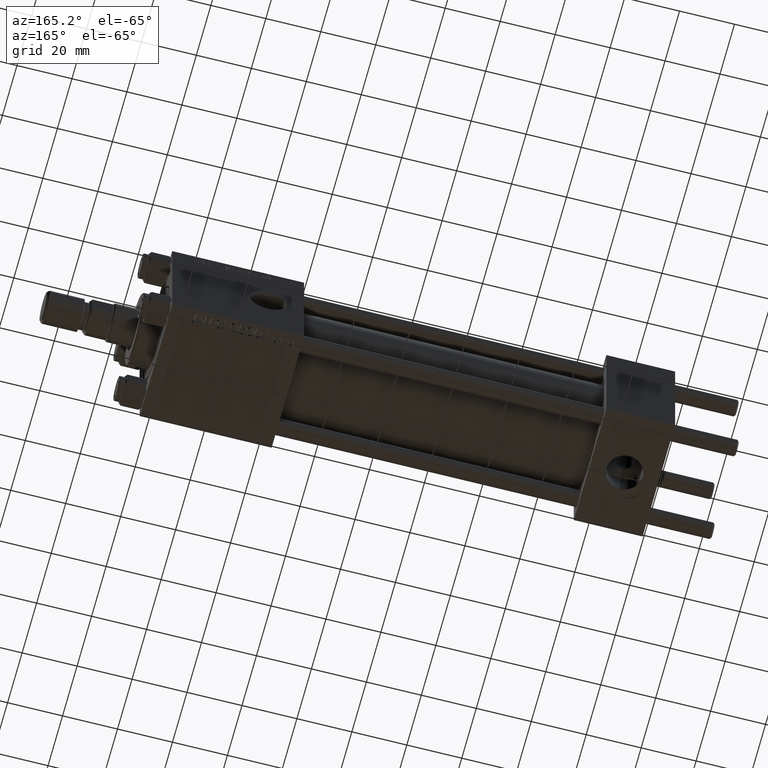
[diagram: clean part render]
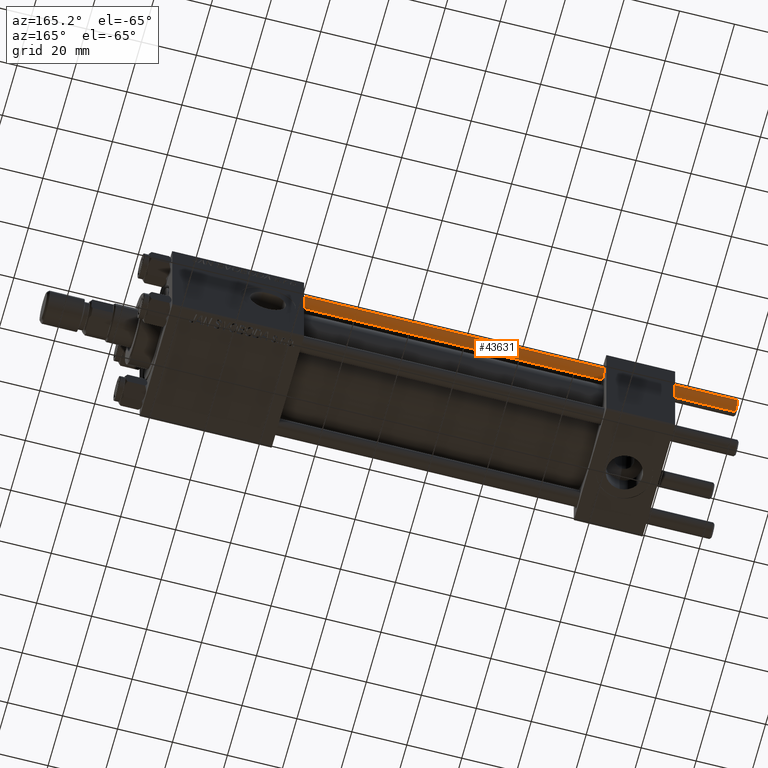
[diagram: same view with one face highlighted and labeled with its STEP entity id]
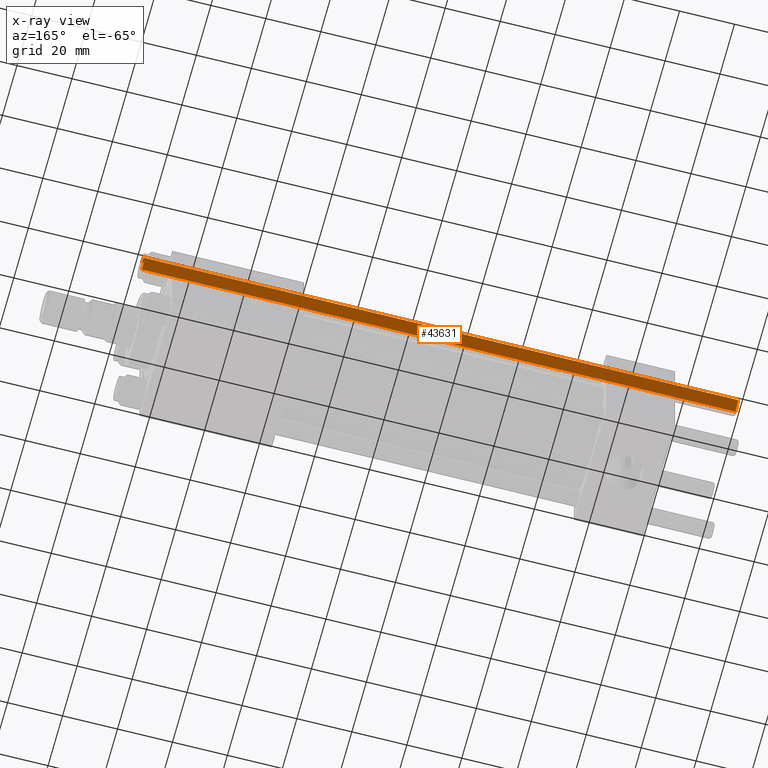
[diagram: x-ray of the same camera — body ghosted, the highlighted face saturated]
A machine part, auxiliary view. The second image highlights one B-rep face of the part: STEP entity #43631.
The next image is the same camera in x-ray: the body ghosted, the highlighted face saturated — about 0% of this face is hidden behind the body in this view.
In plain terms, the highlighted cylindrical surface (edge-blend (fillet) strip) has radius 3 mm, axis along (-1, -0, -0).
Its self-contained STEP definition (entity closure, byte-faithful):
#352 = DIRECTION ( 'NONE',  ( -0.000000000000000000, -0.000000000000000000, -1.000000000000000000 ) ) ;
#2826 = DIRECTION ( 'NONE',  ( 1.000000000000000000, 0.000000000000000000, 0.000000000000000000 ) ) ;
#3310 = CIRCLE ( 'NONE', #13430, 3.000000000000000444 ) ;
#6673 = VERTEX_POINT ( 'NONE', #36722 ) ;
#9847 = CARTESIAN_POINT ( 'NONE',  ( 3.000000000000000444, 3.673940397442060361E-16, 216.5000000000000000 ) ) ;
#11239 = CARTESIAN_POINT ( 'NONE',  ( -3.000000000000000444, 0.000000000000000000, 217.0000000000000000 ) ) ;
#11915 = ORIENTED_EDGE ( 'NONE', *, *, #21301, .T. ) ;
#12724 = FACE_OUTER_BOUND ( 'NONE', #27772, .T. ) ;
#12834 = AXIS2_PLACEMENT_3D ( 'NONE', #20469, #15995, #36545 ) ;
#13430 = AXIS2_PLACEMENT_3D ( 'NONE', #22849, #38916, #2826 ) ;
#14244 = VERTEX_POINT ( 'NONE', #26289 ) ;
#15995 = DIRECTION ( 'NONE',  ( 0.000000000000000000, 0.000000000000000000, -1.000000000000000000 ) ) ;
#16966 = ORIENTED_EDGE ( 'NONE', *, *, #45776, .F. ) ;
#19071 = VECTOR ( 'NONE', #32174, 1000.000000000000000 ) ;
#19217 = AXIS2_PLACEMENT_3D ( 'NONE', #45374, #352, #28796 ) ;
#19920 = LINE ( 'NONE', #11239, #32768 ) ;
#20469 = CARTESIAN_POINT ( 'NONE',  ( 0.000000000000000000, 0.000000000000000000, 216.5000000000000000 ) ) ;
#21301 = EDGE_CURVE ( 'NONE', #6673, #27209, #30504, .T. ) ;
#22849 = CARTESIAN_POINT ( 'NONE',  ( 0.000000000000000000, 0.000000000000000000, 0.5000000000000559552 ) ) ;
#25275 = ORIENTED_EDGE ( 'NONE', *, *, #36948, .T. ) ;
#26289 = CARTESIAN_POINT ( 'NONE',  ( -3.000000000000000444, 0.000000000000000000, 0.5000000000000559552 ) ) ;
#27209 = VERTEX_POINT ( 'NONE', #9847 ) ;
#27772 = EDGE_LOOP ( 'NONE', ( #11915, #25275, #39710, #16966 ) ) ;
#28796 = DIRECTION ( 'NONE',  ( -1.000000000000000000, 0.000000000000000000, 0.000000000000000000 ) ) ;
#30504 = CIRCLE ( 'NONE', #12834, 3.000000000000000444 ) ;
#30642 = CARTESIAN_POINT ( 'NONE',  ( 3.000000000000000444, 3.673940397442060361E-16, 0.5000000000000559552 ) ) ;
#32174 = DIRECTION ( 'NONE',  ( -0.000000000000000000, -0.000000000000000000, -1.000000000000000000 ) ) ;
#32768 = VECTOR ( 'NONE', #43125, 1000.000000000000000 ) ;
#36545 = DIRECTION ( 'NONE',  ( 1.000000000000000000, 0.000000000000000000, 0.000000000000000000 ) ) ;
#36722 = CARTESIAN_POINT ( 'NONE',  ( -3.000000000000000444, 0.000000000000000000, 216.5000000000000000 ) ) ;
#36948 = EDGE_CURVE ( 'NONE', #27209, #42445, #40855, .T. ) ;
#38916 = DIRECTION ( 'NONE',  ( -0.000000000000000000, -0.000000000000000000, 1.000000000000000000 ) ) ;
#39710 = ORIENTED_EDGE ( 'NONE', *, *, #45749, .T. ) ;
#40649 = CYLINDRICAL_SURFACE ( 'NONE', #19217, 3.000000000000000444 ) ;
#40855 = LINE ( 'NONE', #47697, #19071 ) ;
#42445 = VERTEX_POINT ( 'NONE', #30642 ) ;
#43125 = DIRECTION ( 'NONE',  ( -0.000000000000000000, -0.000000000000000000, -1.000000000000000000 ) ) ;
#43631 = ADVANCED_FACE ( 'NONE', ( #12724 ), #40649, .T. ) ;
#45374 = CARTESIAN_POINT ( 'NONE',  ( 0.000000000000000000, 0.000000000000000000, 217.0000000000000000 ) ) ;
#45749 = EDGE_CURVE ( 'NONE', #42445, #14244, #3310, .T. ) ;
#45776 = EDGE_CURVE ( 'NONE', #6673, #14244, #19920, .T. ) ;
#47697 = CARTESIAN_POINT ( 'NONE',  ( 3.000000000000000444, 3.673940397442060361E-16, 217.0000000000000000 ) ) ;